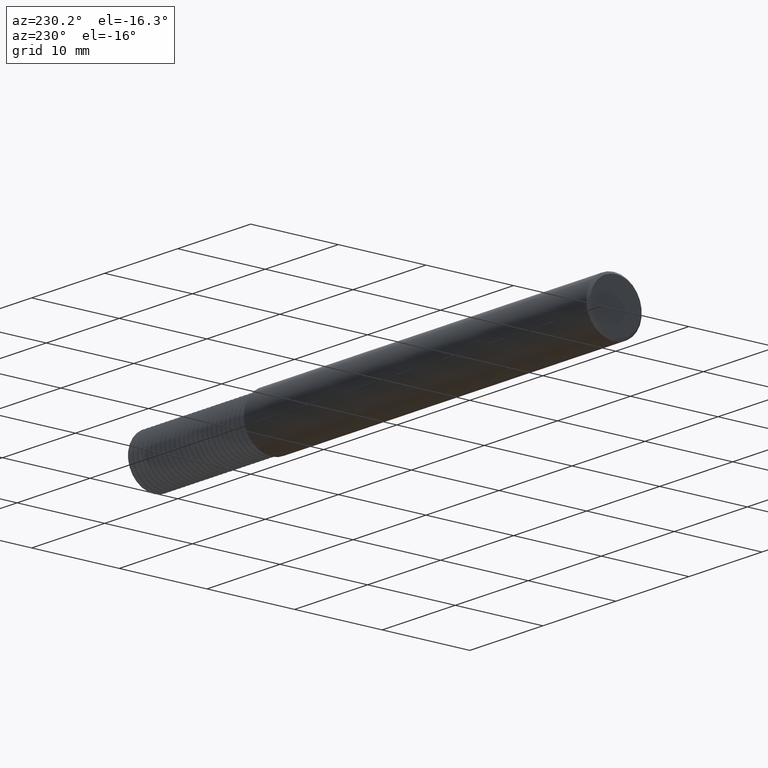
[diagram: clean part render]
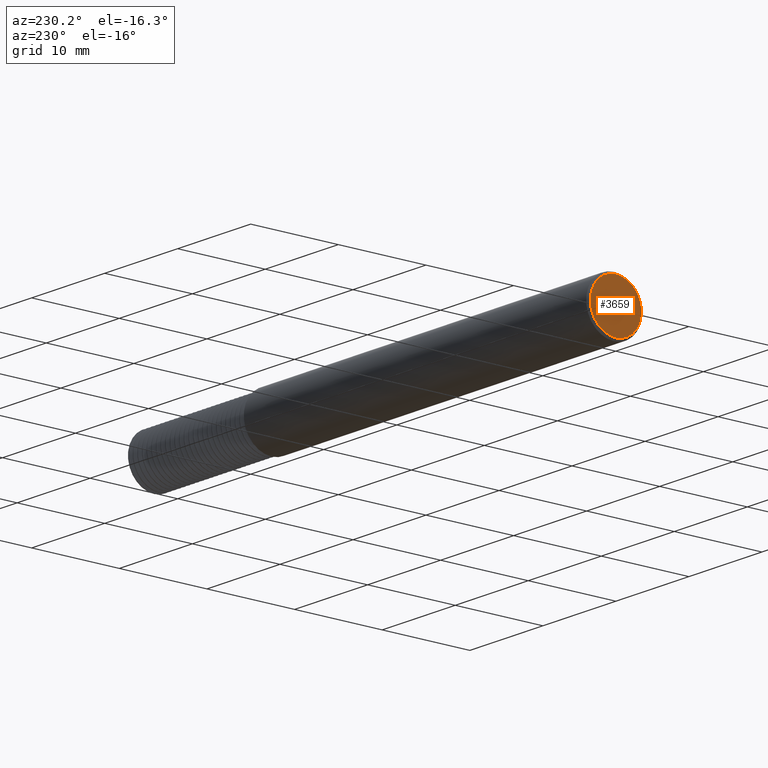
[diagram: same view with one face highlighted and labeled with its STEP entity id]
A machine part, auxiliary view. The second image highlights one B-rep face of the part: STEP entity #3659.
In plain terms, the highlighted planar face has unit normal (-1, 0, 0).
Its self-contained STEP definition (entity closure, byte-faithful):
#53 = FACE_OUTER_BOUND ( 'NONE', #1263, .T. ) ;
#302 = CARTESIAN_POINT ( 'NONE',  ( 0.000000000000000000, 1.467739188778101048E-17, 0.1148499999999997301 ) ) ;
#494 = ORIENTED_EDGE ( 'NONE', *, *, #4285, .T. ) ;
#1178 = CARTESIAN_POINT ( 'NONE',  ( 0.000000000000000000, 0.000000000000000000, 0.000000000000000000 ) ) ;
#1263 = EDGE_LOOP ( 'NONE', ( #494, #5335 ) ) ;
#1303 = PLANE ( 'NONE',  #2464 ) ;
#1691 = DIRECTION ( 'NONE',  ( -1.000000000000000000, 0.000000000000000000, 0.000000000000000000 ) ) ;
#1842 = CARTESIAN_POINT ( 'NONE',  ( 0.000000000000000000, 0.000000000000000000, -0.1148499999999997301 ) ) ;
#2429 = DIRECTION ( 'NONE',  ( 0.000000000000000000, 0.000000000000000000, 1.000000000000000000 ) ) ;
#2464 = AXIS2_PLACEMENT_3D ( 'NONE', #4334, #3889, #3858 ) ;
#2631 = CIRCLE ( 'NONE', #4309, 0.1148499999999997301 ) ;
#2742 = VERTEX_POINT ( 'NONE', #302 ) ;
#2871 = AXIS2_PLACEMENT_3D ( 'NONE', #3273, #5354, #5412 ) ;
#3273 = CARTESIAN_POINT ( 'NONE',  ( 0.000000000000000000, 0.000000000000000000, 0.000000000000000000 ) ) ;
#3287 = EDGE_CURVE ( 'NONE', #2742, #4097, #2631, .T. ) ;
#3659 = ADVANCED_FACE ( 'NONE', ( #53 ), #1303, .T. ) ;
#3858 = DIRECTION ( 'NONE',  ( 0.000000000000000000, 0.000000000000000000, 1.000000000000000000 ) ) ;
#3889 = DIRECTION ( 'NONE',  ( -1.000000000000000000, 0.000000000000000000, 0.000000000000000000 ) ) ;
#4009 = CIRCLE ( 'NONE', #2871, 0.1148499999999997301 ) ;
#4097 = VERTEX_POINT ( 'NONE', #1842 ) ;
#4285 = EDGE_CURVE ( 'NONE', #4097, #2742, #4009, .T. ) ;
#4309 = AXIS2_PLACEMENT_3D ( 'NONE', #1178, #1691, #2429 ) ;
#4334 = CARTESIAN_POINT ( 'NONE',  ( 0.000000000000000000, 0.000000000000000000, 0.000000000000000000 ) ) ;
#5335 = ORIENTED_EDGE ( 'NONE', *, *, #3287, .T. ) ;
#5354 = DIRECTION ( 'NONE',  ( -1.000000000000000000, 0.000000000000000000, 0.000000000000000000 ) ) ;
#5412 = DIRECTION ( 'NONE',  ( 0.000000000000000000, 0.000000000000000000, 1.000000000000000000 ) ) ;